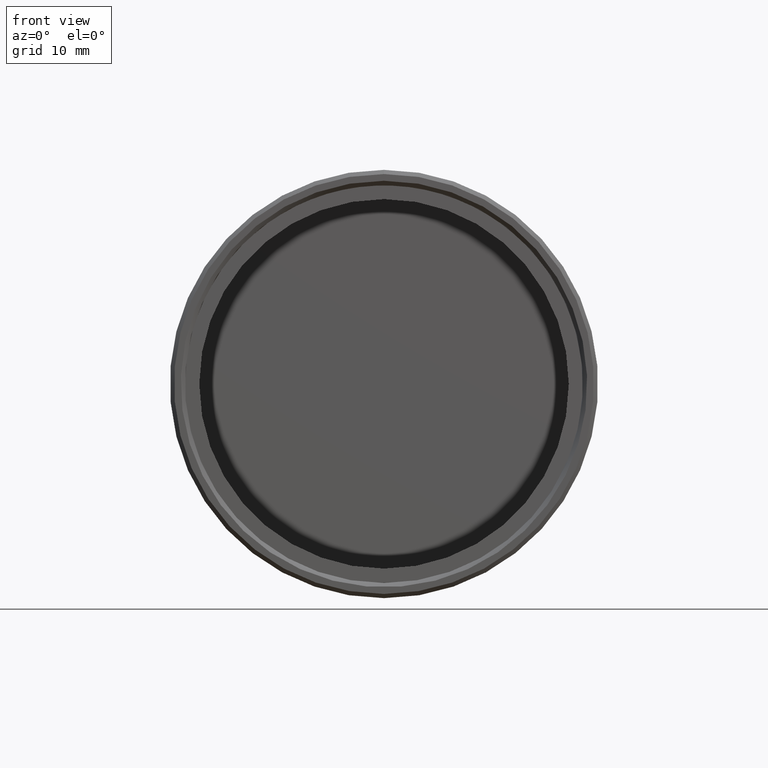
[diagram: clean part render]
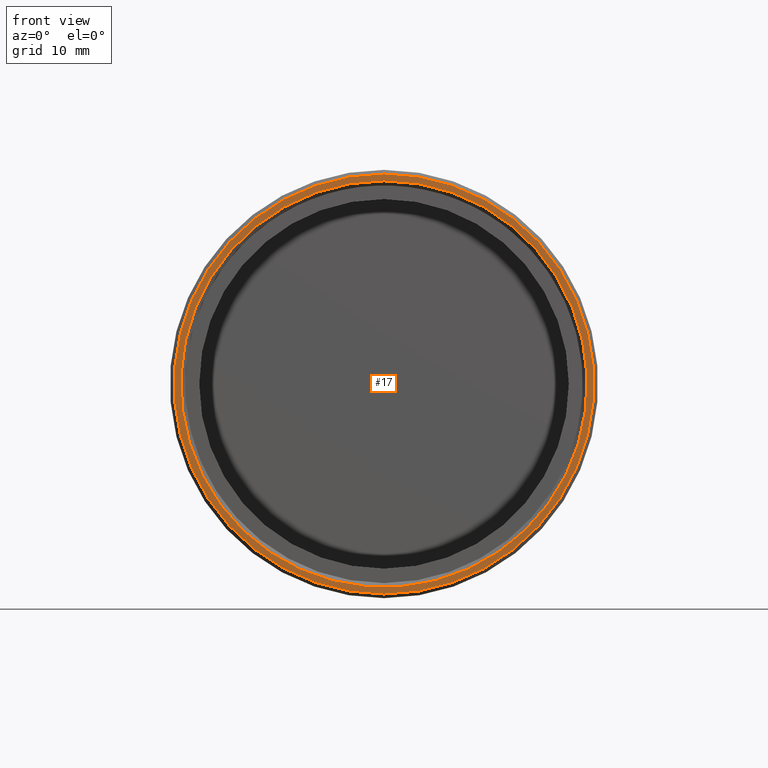
[diagram: same view with one face highlighted and labeled with its STEP entity id]
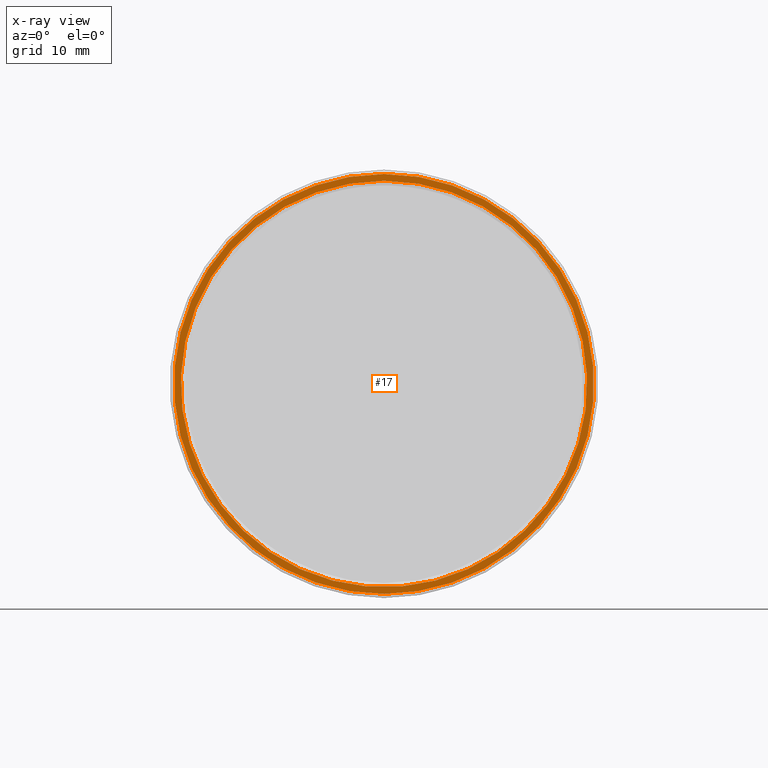
[diagram: x-ray of the same camera — body ghosted, the highlighted face saturated]
A machine part, front view. The second image highlights one B-rep face of the part: STEP entity #17.
The next image is the same camera in x-ray: the body ghosted, the highlighted face saturated — about 0% of this face is hidden behind the body in this view.
In plain terms, the highlighted planar face has unit normal (0, 1, 0).
Its self-contained STEP definition (entity closure, byte-faithful):
#6 = AXIS2_PLACEMENT_3D ( 'NONE', #104, #107, #225 ) ;
#17 = ADVANCED_FACE ( 'NONE', ( #133, #287 ), #369, .F. ) ;
#21 = CARTESIAN_POINT ( 'NONE',  ( 0.000000000000000000, 0.000000000000000000, 24.20000000000000639 ) ) ;
#38 = EDGE_LOOP ( 'NONE', ( #300 ) ) ;
#53 = AXIS2_PLACEMENT_3D ( 'NONE', #76, #166, #171 ) ;
#76 = CARTESIAN_POINT ( 'NONE',  ( 0.000000000000000000, 0.000000000000000000, 0.000000000000000000 ) ) ;
#81 = CARTESIAN_POINT ( 'NONE',  ( 0.000000000000000000, 0.000000000000000000, 0.000000000000000000 ) ) ;
#93 = ORIENTED_EDGE ( 'NONE', *, *, #134, .T. ) ;
#104 = CARTESIAN_POINT ( 'NONE',  ( 0.000000000000000000, 0.000000000000000000, 0.000000000000000000 ) ) ;
#107 = DIRECTION ( 'NONE',  ( 0.000000000000000000, 1.000000000000000000, 0.000000000000000000 ) ) ;
#121 = EDGE_CURVE ( 'NONE', #140, #140, #203, .T. ) ;
#133 = FACE_BOUND ( 'NONE', #38, .T. ) ;
#134 = EDGE_CURVE ( 'NONE', #371, #371, #330, .T. ) ;
#140 = VERTEX_POINT ( 'NONE', #21 ) ;
#158 = EDGE_LOOP ( 'NONE', ( #93 ) ) ;
#166 = DIRECTION ( 'NONE',  ( -0.000000000000000000, -1.000000000000000000, -0.000000000000000000 ) ) ;
#171 = DIRECTION ( 'NONE',  ( 0.000000000000000000, 0.000000000000000000, 1.000000000000000000 ) ) ;
#183 = AXIS2_PLACEMENT_3D ( 'NONE', #81, #229, #310 ) ;
#203 = CIRCLE ( 'NONE', #183, 24.20000000000000639 ) ;
#207 = CARTESIAN_POINT ( 'NONE',  ( 0.000000000000000000, 0.000000000000000000, 25.00000000000000000 ) ) ;
#225 = DIRECTION ( 'NONE',  ( 0.000000000000000000, -0.000000000000000000, 1.000000000000000000 ) ) ;
#229 = DIRECTION ( 'NONE',  ( 0.000000000000000000, 1.000000000000000000, 0.000000000000000000 ) ) ;
#287 = FACE_OUTER_BOUND ( 'NONE', #158, .T. ) ;
#300 = ORIENTED_EDGE ( 'NONE', *, *, #121, .T. ) ;
#310 = DIRECTION ( 'NONE',  ( 0.000000000000000000, 0.000000000000000000, 1.000000000000000000 ) ) ;
#330 = CIRCLE ( 'NONE', #53, 25.00000000000000000 ) ;
#369 = PLANE ( 'NONE',  #6 ) ;
#371 = VERTEX_POINT ( 'NONE', #207 ) ;